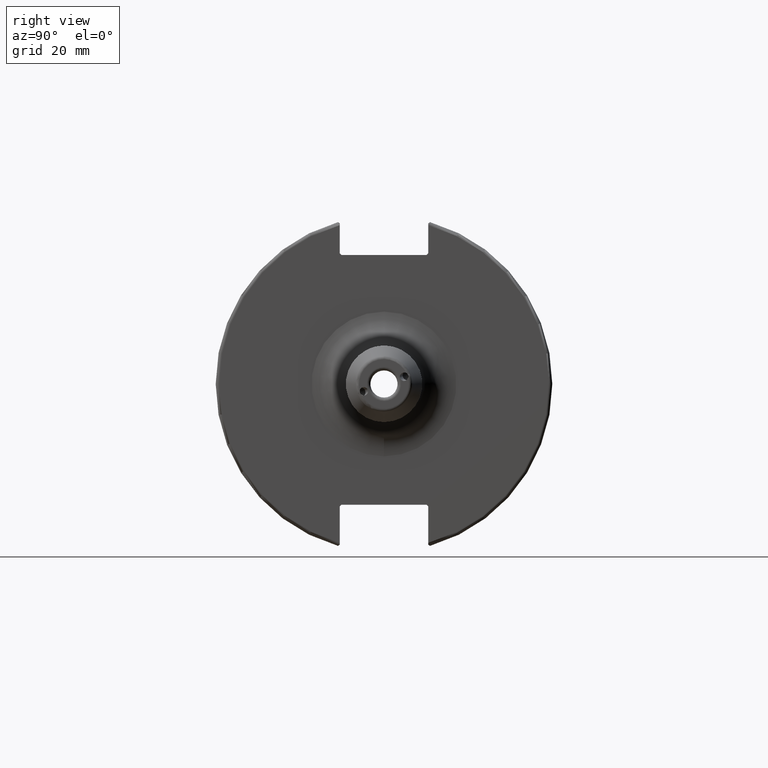
[diagram: clean part render]
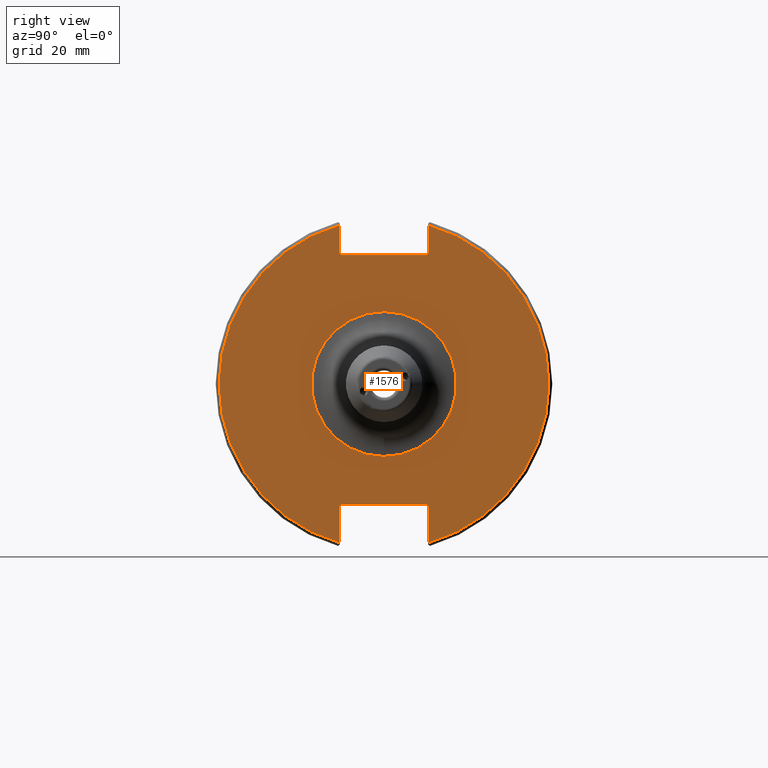
[diagram: same view with one face highlighted and labeled with its STEP entity id]
A machine part, right view. The second image highlights one B-rep face of the part: STEP entity #1576.
In plain terms, the highlighted planar face has unit normal (1, 0, 0).
Its self-contained STEP definition (entity closure, byte-faithful):
#58=FACE_BOUND('',#297,.T.);
#98=CIRCLE('',#1710,21.176);
#99=CIRCLE('',#1712,48.2125);
#100=CIRCLE('',#1713,48.2125);
#158=PLANE('',#1711);
#205=FACE_OUTER_BOUND('',#296,.T.);
#296=EDGE_LOOP('',(#1128,#1129,#1130,#1131,#1132,#1133,#1134,#1135,#1136,
#1137,#1138,#1139));
#297=EDGE_LOOP('',(#1140));
#398=LINE('',#2568,#493);
#399=LINE('',#2570,#494);
#400=LINE('',#2572,#495);
#401=LINE('',#2574,#496);
#402=LINE('',#2576,#497);
#403=LINE('',#2580,#498);
#404=LINE('',#2582,#499);
#405=LINE('',#2584,#500);
#406=LINE('',#2586,#501);
#407=LINE('',#2587,#502);
#493=VECTOR('',#1933,10.);
#494=VECTOR('',#1934,10.);
#495=VECTOR('',#1935,10.);
#496=VECTOR('',#1936,10.);
#497=VECTOR('',#1937,10.);
#498=VECTOR('',#1940,10.);
#499=VECTOR('',#1941,10.);
#500=VECTOR('',#1942,10.);
#501=VECTOR('',#1943,10.);
#502=VECTOR('',#1944,10.);
#665=VERTEX_POINT('',#2560);
#666=VERTEX_POINT('',#2564);
#667=VERTEX_POINT('',#2565);
#668=VERTEX_POINT('',#2567);
#669=VERTEX_POINT('',#2569);
#670=VERTEX_POINT('',#2571);
#671=VERTEX_POINT('',#2573);
#672=VERTEX_POINT('',#2575);
#673=VERTEX_POINT('',#2577);
#674=VERTEX_POINT('',#2579);
#675=VERTEX_POINT('',#2581);
#676=VERTEX_POINT('',#2583);
#677=VERTEX_POINT('',#2585);
#844=EDGE_CURVE('',#665,#665,#98,.T.);
#845=EDGE_CURVE('',#666,#667,#99,.T.);
#846=EDGE_CURVE('',#666,#668,#398,.T.);
#847=EDGE_CURVE('',#669,#668,#399,.T.);
#848=EDGE_CURVE('',#669,#670,#400,.T.);
#849=EDGE_CURVE('',#671,#670,#401,.T.);
#850=EDGE_CURVE('',#671,#672,#402,.T.);
#851=EDGE_CURVE('',#673,#672,#100,.T.);
#852=EDGE_CURVE('',#673,#674,#403,.T.);
#853=EDGE_CURVE('',#675,#674,#404,.T.);
#854=EDGE_CURVE('',#675,#676,#405,.T.);
#855=EDGE_CURVE('',#677,#676,#406,.T.);
#856=EDGE_CURVE('',#677,#667,#407,.T.);
#1128=ORIENTED_EDGE('',*,*,#845,.F.);
#1129=ORIENTED_EDGE('',*,*,#846,.T.);
#1130=ORIENTED_EDGE('',*,*,#847,.F.);
#1131=ORIENTED_EDGE('',*,*,#848,.T.);
#1132=ORIENTED_EDGE('',*,*,#849,.F.);
#1133=ORIENTED_EDGE('',*,*,#850,.T.);
#1134=ORIENTED_EDGE('',*,*,#851,.F.);
#1135=ORIENTED_EDGE('',*,*,#852,.T.);
#1136=ORIENTED_EDGE('',*,*,#853,.F.);
#1137=ORIENTED_EDGE('',*,*,#854,.T.);
#1138=ORIENTED_EDGE('',*,*,#855,.F.);
#1139=ORIENTED_EDGE('',*,*,#856,.T.);
#1140=ORIENTED_EDGE('',*,*,#844,.F.);
#1576=ADVANCED_FACE('',(#205,#58),#158,.T.);
#1710=AXIS2_PLACEMENT_3D('',#2562,#1927,#1928);
#1711=AXIS2_PLACEMENT_3D('',#2563,#1929,#1930);
#1712=AXIS2_PLACEMENT_3D('',#2566,#1931,#1932);
#1713=AXIS2_PLACEMENT_3D('',#2578,#1938,#1939);
#1927=DIRECTION('center_axis',(1.,0.,0.));
#1928=DIRECTION('ref_axis',(0.,1.22464679914735E-16,-1.));
#1929=DIRECTION('center_axis',(1.,0.,0.));
#1930=DIRECTION('ref_axis',(0.,0.,-1.));
#1931=DIRECTION('center_axis',(-1.,0.,0.));
#1932=DIRECTION('ref_axis',(0.,1.,-6.12323399573677E-17));
#1933=DIRECTION('',(0.,0.,-1.));
#1934=DIRECTION('',(0.,0.707106781186549,0.707106781186546));
#1935=DIRECTION('',(0.,-1.,0.));
#1936=DIRECTION('',(0.,0.707106781186549,-0.707106781186546));
#1937=DIRECTION('',(0.,0.,1.));
#1938=DIRECTION('center_axis',(-1.,0.,0.));
#1939=DIRECTION('ref_axis',(0.,-1.,1.60812264967664E-16));
#1940=DIRECTION('',(0.,0.,1.));
#1941=DIRECTION('',(0.,-0.707106781186549,-0.707106781186546));
#1942=DIRECTION('',(0.,1.,0.));
#1943=DIRECTION('',(0.,-0.707106781186549,0.707106781186546));
#1944=DIRECTION('',(0.,0.,-1.));
#2560=CARTESIAN_POINT('',(19.05,-2.59331206187443E-15,-21.176));
#2562=CARTESIAN_POINT('Origin',(19.05,0.,0.));
#2563=CARTESIAN_POINT('Origin',(19.05,0.,0.));
#2564=CARTESIAN_POINT('',(19.05,12.95,46.4407434937254));
#2565=CARTESIAN_POINT('',(19.05,12.95,-46.4407434937254));
#2566=CARTESIAN_POINT('Origin',(19.05,0.,0.));
#2567=CARTESIAN_POINT('',(19.05,12.95,38.219));
#2568=CARTESIAN_POINT('',(19.05,12.95,18.8595));
#2569=CARTESIAN_POINT('',(19.05,12.45,37.719));
#2570=CARTESIAN_POINT('',(19.05,0.0327499999999836,25.30175));
#2571=CARTESIAN_POINT('',(19.05,-12.45,37.719));
#2572=CARTESIAN_POINT('',(19.05,0.,37.719));
#2573=CARTESIAN_POINT('',(19.05,-12.95,38.219));
#2574=CARTESIAN_POINT('',(19.05,-0.0327499999999817,25.30175));
#2575=CARTESIAN_POINT('',(19.05,-12.95,46.4407434937254));
#2576=CARTESIAN_POINT('',(19.05,-12.95,18.8595));
#2577=CARTESIAN_POINT('',(19.05,-12.95,-46.4407434937254));
#2578=CARTESIAN_POINT('Origin',(19.05,0.,0.));
#2579=CARTESIAN_POINT('',(19.05,-12.95,-35.806));
#2580=CARTESIAN_POINT('',(19.05,-12.95,-17.653));
#2581=CARTESIAN_POINT('',(19.05,-12.45,-35.306));
#2582=CARTESIAN_POINT('',(19.05,-0.635999999999989,-23.492));
#2583=CARTESIAN_POINT('',(19.05,12.45,-35.306));
#2584=CARTESIAN_POINT('',(19.05,-3.33066907387547E-15,-35.306));
#2585=CARTESIAN_POINT('',(19.05,12.95,-35.806));
#2586=CARTESIAN_POINT('',(19.05,0.635999999999982,-23.492));
#2587=CARTESIAN_POINT('',(19.05,12.95,-17.653));